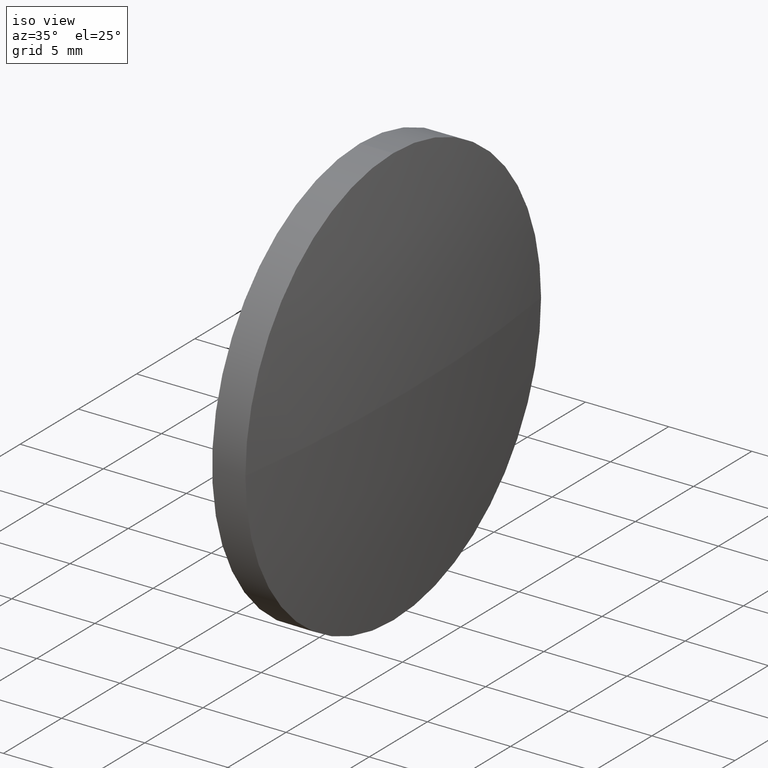
[diagram: clean part render]
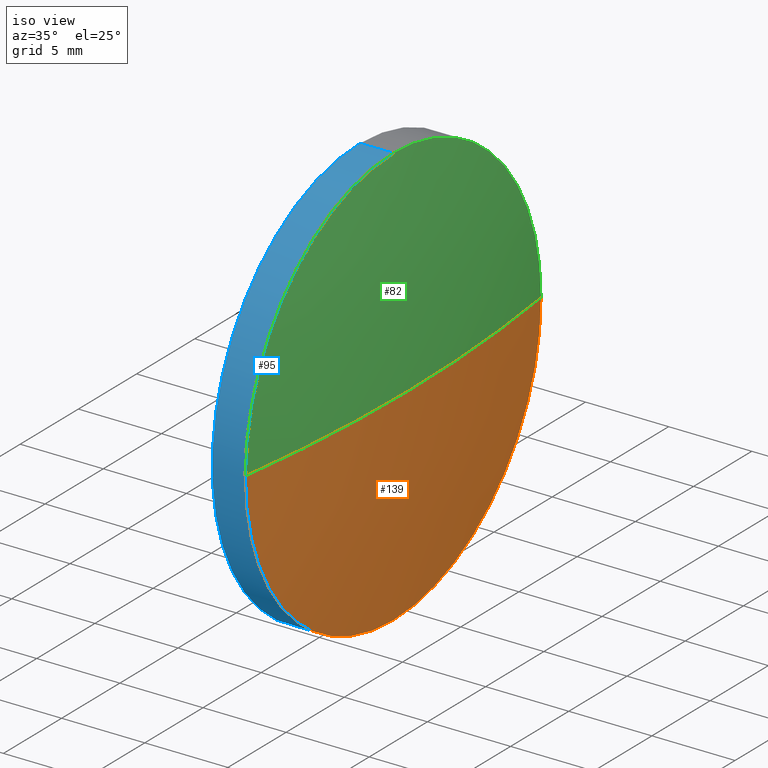
[diagram: same view with three faces highlighted in distinct colors, each labeled with its STEP entity id]
A machine part, iso view with three faces highlighted in distinct colors.
Their STEP definitions:

[orange] entity #139 — the highlighted spherical surface has radius 91.0539 mm.
#8 = VERTEX_POINT ( 'NONE', #104 ) ;
#21 = CARTESIAN_POINT ( 'NONE',  ( 347.3401788407134100, 72.76896585251479600, 0.0000000000000000000 ) ) ;
#22 = EDGE_CURVE ( 'NONE', #177, #103, #150, .T. ) ;
#24 = DIRECTION ( 'NONE',  ( 0.0000000000000000000, -1.000000000000000000, -1.224646799147353000E-016 ) ) ;
#29 = FACE_OUTER_BOUND ( 'NONE', #111, .T. ) ;
#34 = EDGE_CURVE ( 'NONE', #177, #170, #119, .T. ) ;
#38 = DIRECTION ( 'NONE',  ( 0.0000000000000000000, 0.0000000000000000000, 1.000000000000000000 ) ) ;
#40 = DIRECTION ( 'NONE',  ( -1.000000000000000000, -0.0000000000000000000, -0.0000000000000000000 ) ) ;
#49 = EDGE_CURVE ( 'NONE', #8, #103, #71, .T. ) ;
#51 = DIRECTION ( 'NONE',  ( -1.000000000000000000, -0.0000000000000000000, -0.0000000000000000000 ) ) ;
#54 = DIRECTION ( 'NONE',  ( 0.0000000000000000000, -1.224646799147353200E-016, 1.000000000000000000 ) ) ;
#57 = AXIS2_PLACEMENT_3D ( 'NONE', #124, #40, #137 ) ;
#59 = AXIS2_PLACEMENT_3D ( 'NONE', #21, #94, #79 ) ;
#60 = ORIENTED_EDGE ( 'NONE', *, *, #49, .F. ) ;
#61 = AXIS2_PLACEMENT_3D ( 'NONE', #122, #54, #24 ) ;
#70 = ORIENTED_EDGE ( 'NONE', *, *, #117, .F. ) ;
#71 = CIRCLE ( 'NONE', #173, 12.70000000000000300 ) ;
#72 = ORIENTED_EDGE ( 'NONE', *, *, #34, .F. ) ;
#75 = DIRECTION ( 'NONE',  ( 0.0000000000000000000, 0.0000000000000000000, -1.000000000000000000 ) ) ;
#79 = DIRECTION ( 'NONE',  ( 0.0000000000000000000, -1.000000000000000000, 0.0000000000000000000 ) ) ;
#91 = CARTESIAN_POINT ( 'NONE',  ( 347.3401788407134100, 72.76896585251479600, 0.0000000000000000000 ) ) ;
#94 = DIRECTION ( 'NONE',  ( 0.0000000000000000000, 0.0000000000000000000, 1.000000000000000000 ) ) ;
#102 = SPHERICAL_SURFACE ( 'NONE', #59, 91.05394422757211700 ) ;
#103 = VERTEX_POINT ( 'NONE', #178 ) ;
#104 = CARTESIAN_POINT ( 'NONE',  ( 437.5040893559401000, 72.76896585251475400, -12.70000000000000300 ) ) ;
#111 = EDGE_LOOP ( 'NONE', ( #72, #145, #60, #70 ) ) ;
#117 = EDGE_CURVE ( 'NONE', #170, #8, #179, .T. ) ;
#119 = CIRCLE ( 'NONE', #61, 91.05394422757211700 ) ;
#122 = CARTESIAN_POINT ( 'NONE',  ( 347.3401788407134100, 72.76896585251479600, 0.0000000000000000000 ) ) ;
#124 = CARTESIAN_POINT ( 'NONE',  ( 437.5040893559401000, 72.76896585251475400, 0.0000000000000000000 ) ) ;
#127 = CARTESIAN_POINT ( 'NONE',  ( 437.5040893559401000, 85.46896585251484200, 1.555301434917144000E-015 ) ) ;
#137 = DIRECTION ( 'NONE',  ( 0.0000000000000000000, 0.0000000000000000000, 1.000000000000000000 ) ) ;
#139 = ADVANCED_FACE ( 'NONE', ( #29 ), #102, .T. ) ;
#141 = CARTESIAN_POINT ( 'NONE',  ( 438.3941230682855200, 72.76896585251479600, 0.0000000000000000000 ) ) ;
#145 = ORIENTED_EDGE ( 'NONE', *, *, #22, .T. ) ;
#150 = CIRCLE ( 'NONE', #163, 91.05394422757213100 ) ;
#151 = CARTESIAN_POINT ( 'NONE',  ( 437.5040893559401000, 72.76896585251475400, 0.0000000000000000000 ) ) ;
#154 = DIRECTION ( 'NONE',  ( -1.000000000000000000, 0.0000000000000000000, 0.0000000000000000000 ) ) ;
#163 = AXIS2_PLACEMENT_3D ( 'NONE', #91, #75, #154 ) ;
#170 = VERTEX_POINT ( 'NONE', #127 ) ;
#173 = AXIS2_PLACEMENT_3D ( 'NONE', #151, #51, #38 ) ;
#177 = VERTEX_POINT ( 'NONE', #141 ) ;
#178 = CARTESIAN_POINT ( 'NONE',  ( 437.5040893559401000, 60.06896585251471500, 0.0000000000000000000 ) ) ;
#179 = CIRCLE ( 'NONE', #57, 12.70000000000000300 ) ;

[blue] entity #95 — the highlighted cylindrical surface (partial cylindrical patch) has radius 12.7 mm, axis along (-1, -0, -0).
#1 = VERTEX_POINT ( 'NONE', #12 ) ;
#4 = CIRCLE ( 'NONE', #86, 12.70000000000000300 ) ;
#7 = EDGE_CURVE ( 'NONE', #1, #80, #123, .T. ) ;
#8 = VERTEX_POINT ( 'NONE', #104 ) ;
#9 = DIRECTION ( 'NONE',  ( 0.0000000000000000000, 0.0000000000000000000, 1.000000000000000000 ) ) ;
#12 = CARTESIAN_POINT ( 'NONE',  ( 435.5040893559401000, 72.76896585251475400, -12.70000000000000300 ) ) ;
#13 = DIRECTION ( 'NONE',  ( -1.000000000000000000, -0.0000000000000000000, -0.0000000000000000000 ) ) ;
#25 = DIRECTION ( 'NONE',  ( -1.000000000000000000, -0.0000000000000000000, -0.0000000000000000000 ) ) ;
#26 = EDGE_CURVE ( 'NONE', #98, #80, #96, .T. ) ;
#31 = ORIENTED_EDGE ( 'NONE', *, *, #58, .F. ) ;
#36 = CARTESIAN_POINT ( 'NONE',  ( 435.5040893559401000, 72.76896585251475400, 12.70000000000000300 ) ) ;
#38 = DIRECTION ( 'NONE',  ( 0.0000000000000000000, 0.0000000000000000000, 1.000000000000000000 ) ) ;
#39 = CARTESIAN_POINT ( 'NONE',  ( 437.5040893559401000, 72.76896585251475400, 0.0000000000000000000 ) ) ;
#42 = VECTOR ( 'NONE', #13, 1000.000000000000000 ) ;
#44 = DIRECTION ( 'NONE',  ( -1.000000000000000000, -0.0000000000000000000, -0.0000000000000000000 ) ) ;
#49 = EDGE_CURVE ( 'NONE', #8, #103, #71, .T. ) ;
#51 = DIRECTION ( 'NONE',  ( -1.000000000000000000, -0.0000000000000000000, -0.0000000000000000000 ) ) ;
#52 = ORIENTED_EDGE ( 'NONE', *, *, #7, .F. ) ;
#53 = CARTESIAN_POINT ( 'NONE',  ( 437.5040893559401000, 72.76896585251475400, 12.70000000000000300 ) ) ;
#58 = EDGE_CURVE ( 'NONE', #8, #1, #146, .T. ) ;
#62 = CARTESIAN_POINT ( 'NONE',  ( 429.7994158084853200, 72.76896585251475400, 12.70000000000000300 ) ) ;
#64 = DIRECTION ( 'NONE',  ( 0.0000000000000000000, 0.0000000000000000000, 1.000000000000000000 ) ) ;
#65 = FACE_OUTER_BOUND ( 'NONE', #160, .T. ) ;
#67 = DIRECTION ( 'NONE',  ( 0.0000000000000000000, 0.0000000000000000000, 1.000000000000000000 ) ) ;
#68 = DIRECTION ( 'NONE',  ( -1.000000000000000000, -0.0000000000000000000, -0.0000000000000000000 ) ) ;
#71 = CIRCLE ( 'NONE', #173, 12.70000000000000300 ) ;
#74 = ORIENTED_EDGE ( 'NONE', *, *, #49, .T. ) ;
#80 = VERTEX_POINT ( 'NONE', #36 ) ;
#83 = VECTOR ( 'NONE', #25, 1000.000000000000000 ) ;
#86 = AXIS2_PLACEMENT_3D ( 'NONE', #39, #165, #64 ) ;
#95 = ADVANCED_FACE ( 'NONE', ( #65 ), #185, .T. ) ;
#96 = LINE ( 'NONE', #62, #42 ) ;
#98 = VERTEX_POINT ( 'NONE', #53 ) ;
#99 = AXIS2_PLACEMENT_3D ( 'NONE', #118, #44, #9 ) ;
#103 = VERTEX_POINT ( 'NONE', #178 ) ;
#104 = CARTESIAN_POINT ( 'NONE',  ( 437.5040893559401000, 72.76896585251475400, -12.70000000000000300 ) ) ;
#107 = ORIENTED_EDGE ( 'NONE', *, *, #26, .T. ) ;
#110 = EDGE_CURVE ( 'NONE', #103, #98, #4, .T. ) ;
#118 = CARTESIAN_POINT ( 'NONE',  ( 435.5040893559401000, 72.76896585251475400, 0.0000000000000000000 ) ) ;
#123 = CIRCLE ( 'NONE', #99, 12.70000000000000300 ) ;
#130 = AXIS2_PLACEMENT_3D ( 'NONE', #135, #68, #67 ) ;
#131 = ORIENTED_EDGE ( 'NONE', *, *, #110, .T. ) ;
#135 = CARTESIAN_POINT ( 'NONE',  ( 429.7994158084853200, 72.76896585251475400, 0.0000000000000000000 ) ) ;
#136 = CARTESIAN_POINT ( 'NONE',  ( 429.7994158084853200, 72.76896585251475400, -12.70000000000000300 ) ) ;
#146 = LINE ( 'NONE', #136, #83 ) ;
#151 = CARTESIAN_POINT ( 'NONE',  ( 437.5040893559401000, 72.76896585251475400, 0.0000000000000000000 ) ) ;
#160 = EDGE_LOOP ( 'NONE', ( #31, #74, #131, #107, #52 ) ) ;
#165 = DIRECTION ( 'NONE',  ( -1.000000000000000000, -0.0000000000000000000, -0.0000000000000000000 ) ) ;
#173 = AXIS2_PLACEMENT_3D ( 'NONE', #151, #51, #38 ) ;
#178 = CARTESIAN_POINT ( 'NONE',  ( 437.5040893559401000, 60.06896585251471500, 0.0000000000000000000 ) ) ;
#185 = CYLINDRICAL_SURFACE ( 'NONE', #130, 12.70000000000000300 ) ;

[green] entity #82 — the highlighted spherical surface has radius 91.0539 mm.
#4 = CIRCLE ( 'NONE', #86, 12.70000000000000300 ) ;
#11 = DIRECTION ( 'NONE',  ( 0.0000000000000000000, -1.000000000000000000, 0.0000000000000000000 ) ) ;
#14 = FACE_OUTER_BOUND ( 'NONE', #55, .T. ) ;
#16 = ORIENTED_EDGE ( 'NONE', *, *, #110, .F. ) ;
#22 = EDGE_CURVE ( 'NONE', #177, #103, #150, .T. ) ;
#24 = DIRECTION ( 'NONE',  ( 0.0000000000000000000, -1.000000000000000000, -1.224646799147353000E-016 ) ) ;
#34 = EDGE_CURVE ( 'NONE', #177, #170, #119, .T. ) ;
#35 = ORIENTED_EDGE ( 'NONE', *, *, #22, .F. ) ;
#39 = CARTESIAN_POINT ( 'NONE',  ( 437.5040893559401000, 72.76896585251475400, 0.0000000000000000000 ) ) ;
#47 = AXIS2_PLACEMENT_3D ( 'NONE', #90, #66, #11 ) ;
#53 = CARTESIAN_POINT ( 'NONE',  ( 437.5040893559401000, 72.76896585251475400, 12.70000000000000300 ) ) ;
#54 = DIRECTION ( 'NONE',  ( 0.0000000000000000000, -1.224646799147353200E-016, 1.000000000000000000 ) ) ;
#55 = EDGE_LOOP ( 'NONE', ( #35, #100, #126, #16 ) ) ;
#61 = AXIS2_PLACEMENT_3D ( 'NONE', #122, #54, #24 ) ;
#64 = DIRECTION ( 'NONE',  ( 0.0000000000000000000, 0.0000000000000000000, 1.000000000000000000 ) ) ;
#66 = DIRECTION ( 'NONE',  ( 0.0000000000000000000, 0.0000000000000000000, 1.000000000000000000 ) ) ;
#69 = AXIS2_PLACEMENT_3D ( 'NONE', #152, #166, #183 ) ;
#75 = DIRECTION ( 'NONE',  ( 0.0000000000000000000, 0.0000000000000000000, -1.000000000000000000 ) ) ;
#78 = CIRCLE ( 'NONE', #69, 12.70000000000000300 ) ;
#82 = ADVANCED_FACE ( 'NONE', ( #14 ), #140, .T. ) ;
#86 = AXIS2_PLACEMENT_3D ( 'NONE', #39, #165, #64 ) ;
#90 = CARTESIAN_POINT ( 'NONE',  ( 347.3401788407134100, 72.76896585251479600, 0.0000000000000000000 ) ) ;
#91 = CARTESIAN_POINT ( 'NONE',  ( 347.3401788407134100, 72.76896585251479600, 0.0000000000000000000 ) ) ;
#98 = VERTEX_POINT ( 'NONE', #53 ) ;
#100 = ORIENTED_EDGE ( 'NONE', *, *, #34, .T. ) ;
#103 = VERTEX_POINT ( 'NONE', #178 ) ;
#110 = EDGE_CURVE ( 'NONE', #103, #98, #4, .T. ) ;
#114 = EDGE_CURVE ( 'NONE', #98, #170, #78, .T. ) ;
#119 = CIRCLE ( 'NONE', #61, 91.05394422757211700 ) ;
#122 = CARTESIAN_POINT ( 'NONE',  ( 347.3401788407134100, 72.76896585251479600, 0.0000000000000000000 ) ) ;
#126 = ORIENTED_EDGE ( 'NONE', *, *, #114, .F. ) ;
#127 = CARTESIAN_POINT ( 'NONE',  ( 437.5040893559401000, 85.46896585251484200, 1.555301434917144000E-015 ) ) ;
#140 = SPHERICAL_SURFACE ( 'NONE', #47, 91.05394422757211700 ) ;
#141 = CARTESIAN_POINT ( 'NONE',  ( 438.3941230682855200, 72.76896585251479600, 0.0000000000000000000 ) ) ;
#150 = CIRCLE ( 'NONE', #163, 91.05394422757213100 ) ;
#152 = CARTESIAN_POINT ( 'NONE',  ( 437.5040893559401000, 72.76896585251475400, 0.0000000000000000000 ) ) ;
#154 = DIRECTION ( 'NONE',  ( -1.000000000000000000, 0.0000000000000000000, 0.0000000000000000000 ) ) ;
#163 = AXIS2_PLACEMENT_3D ( 'NONE', #91, #75, #154 ) ;
#165 = DIRECTION ( 'NONE',  ( -1.000000000000000000, -0.0000000000000000000, -0.0000000000000000000 ) ) ;
#166 = DIRECTION ( 'NONE',  ( -1.000000000000000000, -0.0000000000000000000, -0.0000000000000000000 ) ) ;
#170 = VERTEX_POINT ( 'NONE', #127 ) ;
#177 = VERTEX_POINT ( 'NONE', #141 ) ;
#178 = CARTESIAN_POINT ( 'NONE',  ( 437.5040893559401000, 60.06896585251471500, 0.0000000000000000000 ) ) ;
#183 = DIRECTION ( 'NONE',  ( 0.0000000000000000000, 0.0000000000000000000, 1.000000000000000000 ) ) ;